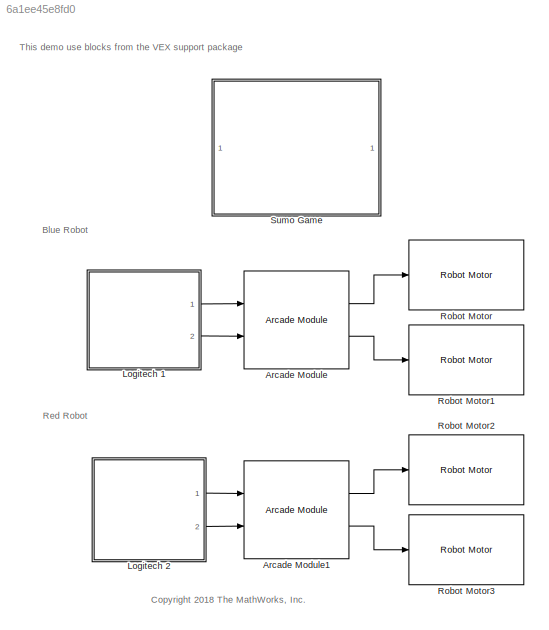
MODEL slx_6a1ee45e8fd0
KIND model
CONFIG AbsTol = auto
CONFIG EnableMultiTasking = on
CONFIG FixedStep = 0.05
CONFIG InitFcn = RPInit
CONFIG MaxStep = auto
CONFIG MinStep = auto
CONFIG RelTol = 1e-3
CONFIG SampleTimeConstraint = Unconstrained
CONFIG Solver = ode23t
CONFIG SolverName = ode23t
CONFIG StartTime = 0.0
CONFIG StopTime = inf
BLOCK [Reference] Arcade Module  REF=vexcommonlib/Arcade Module
  Ports = [2, 2]
  SourceBlock = vexcommonlib/Arcade Module
  SourceProductBaseCode = EC_VEX_MICRO
  SourceProductName = Simulink Coder Support Package for ARM Cortex-based VEX Microcontroller
  SourceType = Arcade-2 Motors Module
BLOCK [Reference] Arcade Module1  REF=vexcommonlib/Arcade Module
  Ports = [2, 2]
  SourceBlock = vexcommonlib/Arcade Module
  SourceProductBaseCode = EC_VEX_MICRO
  SourceProductName = Simulink Coder Support Package for ARM Cortex-based VEX Microcontroller
  SourceType = Arcade-2 Motors Module
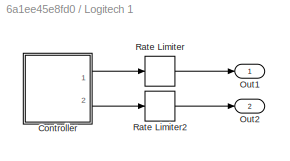
BLOCK [SubSystem] Logitech 1
  Ports = [0, 2]
  RequestExecContextInheritance = off
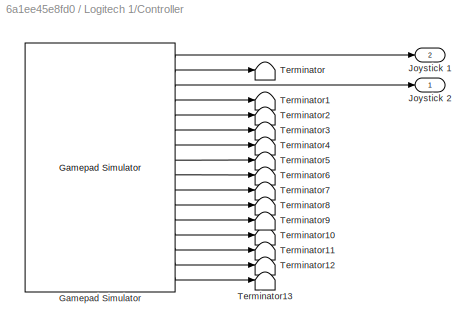
BLOCK [SubSystem] Logitech 1/Controller
  Ports = [0, 2]
  RequestExecContextInheritance = off
BLOCK [Reference] Logitech 1/Controller/Gamepad Simulator  REF=vexcommonlib/Gamepad Simulator
  Ports = [0, 16]
  SourceBlock = vexcommonlib/Gamepad Simulator
  SourceProductBaseCode = EC_VEX_MICRO
  SourceProductName = Simulink Coder Support Package for ARM Cortex-based VEX Microcontroller
  SourceType = Gamepad Simulator
BLOCK [Outport] Logitech 1/Controller/Joystick 1
  IconDisplay = Port number
  Port = 2
  VectorParamsAs1DForOutWhenUnconnected = off
BLOCK [Outport] Logitech 1/Controller/Joystick 2
  IconDisplay = Port number
  VectorParamsAs1DForOutWhenUnconnected = off
BLOCK [Terminator] Logitech 1/Controller/Terminator
BLOCK [Terminator] Logitech 1/Controller/Terminator1
BLOCK [Terminator] Logitech 1/Controller/Terminator10
BLOCK [Terminator] Logitech 1/Controller/Terminator11
BLOCK [Terminator] Logitech 1/Controller/Terminator12
BLOCK [Terminator] Logitech 1/Controller/Terminator13
BLOCK [Terminator] Logitech 1/Controller/Terminator2
BLOCK [Terminator] Logitech 1/Controller/Terminator3
BLOCK [Terminator] Logitech 1/Controller/Terminator4
BLOCK [Terminator] Logitech 1/Controller/Terminator5
BLOCK [Terminator] Logitech 1/Controller/Terminator6
BLOCK [Terminator] Logitech 1/Controller/Terminator7
BLOCK [Terminator] Logitech 1/Controller/Terminator8
BLOCK [Terminator] Logitech 1/Controller/Terminator9
BLOCK [Outport] Logitech 1/Out1
  IconDisplay = Port number
  VectorParamsAs1DForOutWhenUnconnected = off
BLOCK [Outport] Logitech 1/Out2
  IconDisplay = Port number
  Port = 2
  VectorParamsAs1DForOutWhenUnconnected = off
BLOCK [RateLimiter] Logitech 1/Rate Limiter
  FallingSlewLimit = -1.2*127
  RisingSlewLimit = 1.2*127
  SampleTimeMode = inherited
BLOCK [RateLimiter] Logitech 1/Rate Limiter2
  FallingSlewLimit = -1.2*127
  RisingSlewLimit = 1.2*127
  SampleTimeMode = inherited
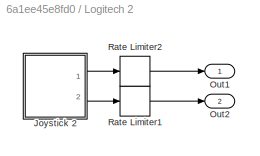
BLOCK [SubSystem] Logitech 2
  Ports = [0, 2]
  RequestExecContextInheritance = off
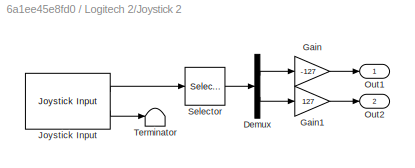
BLOCK [SubSystem] Logitech 2/Joystick 2
  Ports = [0, 2]
  RequestExecContextInheritance = off
BLOCK [Demux] Logitech 2/Joystick 2/Demux
  DisplayOption = bar
  Outputs = 2
  Ports = [1, 2]
BLOCK [Gain] Logitech 2/Joystick 2/Gain
  Gain = -127
  OutDataTypeStr = Inherit: Inherit via internal rule
  ParamDataTypeStr = Inherit: Inherit via internal rule
  SaturateOnIntegerOverflow = off
BLOCK [Gain] Logitech 2/Joystick 2/Gain1
  Gain = 127
  OutDataTypeStr = Inherit: Inherit via internal rule
  ParamDataTypeStr = Inherit: Inherit via internal rule
  SaturateOnIntegerOverflow = off
BLOCK [Reference] Logitech 2/Joystick 2/Joystick Input  REF=vrlib/Joystick Input
  Ports = [0, 2]
  SourceBlock = vrlib/Joystick Input
  SourceProductBaseCode = VR
  SourceProductName = Simulink 3D Animation
  SourceType = Joystick Input
BLOCK [Outport] Logitech 2/Joystick 2/Out1
  IconDisplay = Port number
  VectorParamsAs1DForOutWhenUnconnected = off
BLOCK [Outport] Logitech 2/Joystick 2/Out2
  IconDisplay = Port number
  Port = 2
  VectorParamsAs1DForOutWhenUnconnected = off
BLOCK [Selector] Logitech 2/Joystick 2/Selector
  IndexOptions = Index vector (dialog)
  Indices = [2 3]
  InputPortWidth = 4
  OutputSizes = 1
  Ports = [1, 1]
BLOCK [Terminator] Logitech 2/Joystick 2/Terminator
BLOCK [Outport] Logitech 2/Out1
  IconDisplay = Port number
  VectorParamsAs1DForOutWhenUnconnected = off
BLOCK [Outport] Logitech 2/Out2
  IconDisplay = Port number
  Port = 2
  VectorParamsAs1DForOutWhenUnconnected = off
BLOCK [RateLimiter] Logitech 2/Rate Limiter1
  FallingSlewLimit = -1.2*127
  RisingSlewLimit = 1.2*127
  SampleTimeMode = inherited
BLOCK [RateLimiter] Logitech 2/Rate Limiter2
  FallingSlewLimit = -1.2*127
  RisingSlewLimit = 1.2*127
  SampleTimeMode = inherited
BLOCK [Reference] Robot Motor  REF=RoboticsPlayground/Basic Sensors and Actuators/Robot Motor
  Ports = [1]
  SourceBlock = RoboticsPlayground/Basic Sensors and Actuators/Robot Motor
  SourceProductName = Robotics Playground
  SourceType = RP Robot Motor
BLOCK [Reference] Robot Motor1  REF=RoboticsPlayground/Basic Sensors and Actuators/Robot Motor
  Ports = [1]
  SourceBlock = RoboticsPlayground/Basic Sensors and Actuators/Robot Motor
  SourceProductName = Robotics Playground
  SourceType = RP Robot Motor
BLOCK [Reference] Robot Motor2  REF=RoboticsPlayground/Basic Sensors and Actuators/Robot Motor
  Ports = [1]
  SourceBlock = RoboticsPlayground/Basic Sensors and Actuators/Robot Motor
  SourceProductName = Robotics Playground
  SourceType = RP Robot Motor
BLOCK [Reference] Robot Motor3  REF=RoboticsPlayground/Basic Sensors and Actuators/Robot Motor
  Ports = [1]
  SourceBlock = RoboticsPlayground/Basic Sensors and Actuators/Robot Motor
  SourceProductName = Robotics Playground
  SourceType = RP Robot Motor
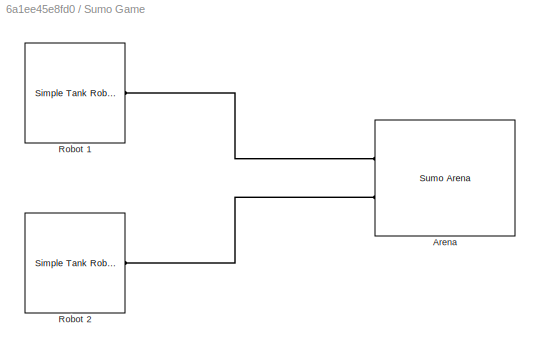
BLOCK [SubSystem] Sumo Game
  CopyFcn = set_param(gcs,'InitFcn','RPInit');\nset_param(gcs,'Solver','ode23t');\nset_param(gcs, 'EnablePacing', 'on')\nset_param(gcs, 'PacingRate', 1)
  Ports = []
  RequestExecContextInheritance = off
BLOCK [Reference] Sumo Game/Arena  REF=RP_Simulator_Components/Sumo Arena
  Ports = [0, 0, 0, 0, 0, 2]
  SourceBlock = RP_Simulator_Components/Sumo Arena
  SourceType = RP Sumo Arena
BLOCK [Reference] Sumo Game/Robot 1  REF=RP_Simulator_Components/Simple Tank Robot
  Ports = [0, 0, 0, 0, 0, 0, 1]
  SourceBlock = RP_Simulator_Components/Simple Tank Robot
  SourceType = RP Simple Tank Robot
BLOCK [Reference] Sumo Game/Robot 2  REF=RP_Simulator_Components/Simple Tank Robot
  Ports = [0, 0, 0, 0, 0, 0, 1]
  SourceBlock = RP_Simulator_Components/Simple Tank Robot
  SourceType = RP Simple Tank Robot
ANNOTATION (root): <copyright redacted>
ANNOTATION (root): This demo use blocks from the VEX support package
ANNOTATION (root): Blue Robot
ANNOTATION (root): Red Robot
LINE Arcade Module1:1 -> Robot Motor2:1
LINE Arcade Module1:2 -> Robot Motor3:1
LINE Arcade Module:1 -> Robot Motor:1
LINE Arcade Module:2 -> Robot Motor1:1
LINE Logitech 1/Controller/Gamepad Simulator:1 -> Logitech 1/Controller/Joystick 1:1
LINE Logitech 1/Controller/Gamepad Simulator:10 -> Logitech 1/Controller/Terminator7:1
LINE Logitech 1/Controller/Gamepad Simulator:11 -> Logitech 1/Controller/Terminator8:1
LINE Logitech 1/Controller/Gamepad Simulator:12 -> Logitech 1/Controller/Terminator9:1
LINE Logitech 1/Controller/Gamepad Simulator:13 -> Logitech 1/Controller/Terminator10:1
LINE Logitech 1/Controller/Gamepad Simulator:14 -> Logitech 1/Controller/Terminator11:1
LINE Logitech 1/Controller/Gamepad Simulator:15 -> Logitech 1/Controller/Terminator12:1
LINE Logitech 1/Controller/Gamepad Simulator:16 -> Logitech 1/Controller/Terminator13:1
LINE Logitech 1/Controller/Gamepad Simulator:2 -> Logitech 1/Controller/Terminator:1
LINE Logitech 1/Controller/Gamepad Simulator:3 -> Logitech 1/Controller/Joystick 2:1
LINE Logitech 1/Controller/Gamepad Simulator:4 -> Logitech 1/Controller/Terminator1:1
LINE Logitech 1/Controller/Gamepad Simulator:5 -> Logitech 1/Controller/Terminator2:1
LINE Logitech 1/Controller/Gamepad Simulator:6 -> Logitech 1/Controller/Terminator3:1
LINE Logitech 1/Controller/Gamepad Simulator:7 -> Logitech 1/Controller/Terminator4:1
LINE Logitech 1/Controller/Gamepad Simulator:8 -> Logitech 1/Controller/Terminator5:1
LINE Logitech 1/Controller/Gamepad Simulator:9 -> Logitech 1/Controller/Terminator6:1
LINE Logitech 1/Controller:1 -> Logitech 1/Rate Limiter:1
LINE Logitech 1/Controller:2 -> Logitech 1/Rate Limiter2:1
LINE Logitech 1/Rate Limiter2:1 -> Logitech 1/Out2:1
LINE Logitech 1/Rate Limiter:1 -> Logitech 1/Out1:1
LINE Logitech 1:1 -> Arcade Module:1
LINE Logitech 1:2 -> Arcade Module:2
LINE Logitech 2/Joystick 2/Demux:1 -> Logitech 2/Joystick 2/Gain:1
LINE Logitech 2/Joystick 2/Demux:2 -> Logitech 2/Joystick 2/Gain1:1
LINE Logitech 2/Joystick 2/Gain1:1 -> Logitech 2/Joystick 2/Out2:1
LINE Logitech 2/Joystick 2/Gain:1 -> Logitech 2/Joystick 2/Out1:1
LINE Logitech 2/Joystick 2/Joystick Input:1 -> Logitech 2/Joystick 2/Selector:1
LINE Logitech 2/Joystick 2/Joystick Input:2 -> Logitech 2/Joystick 2/Terminator:1
LINE Logitech 2/Joystick 2/Selector:1 -> Logitech 2/Joystick 2/Demux:1
LINE Logitech 2/Joystick 2:1 -> Logitech 2/Rate Limiter2:1
LINE Logitech 2/Joystick 2:2 -> Logitech 2/Rate Limiter1:1
LINE Logitech 2/Rate Limiter1:1 -> Logitech 2/Out2:1
LINE Logitech 2/Rate Limiter2:1 -> Logitech 2/Out1:1
LINE Logitech 2:1 -> Arcade Module1:1
LINE Logitech 2:2 -> Arcade Module1:2
